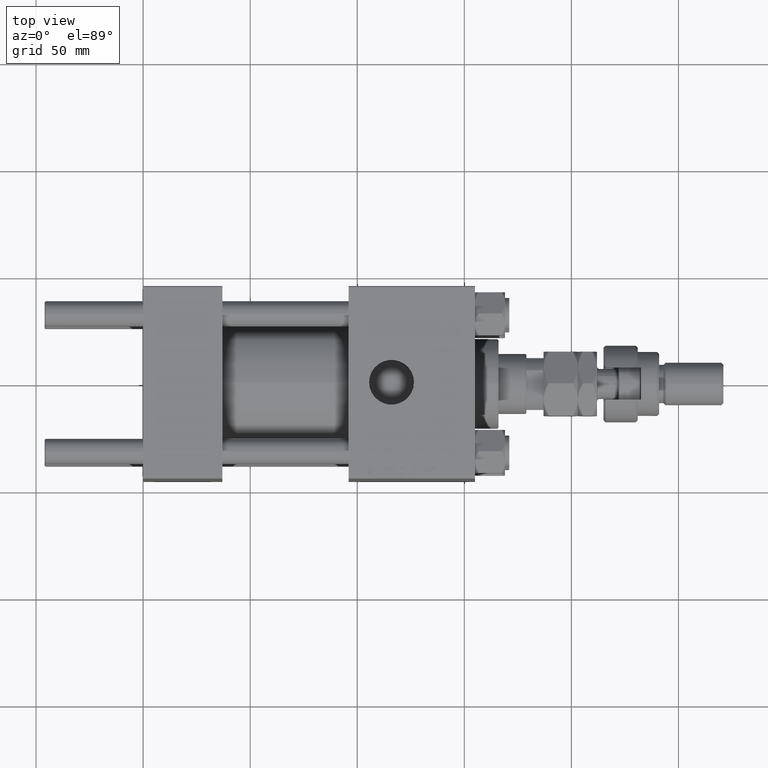
[diagram: clean part render]
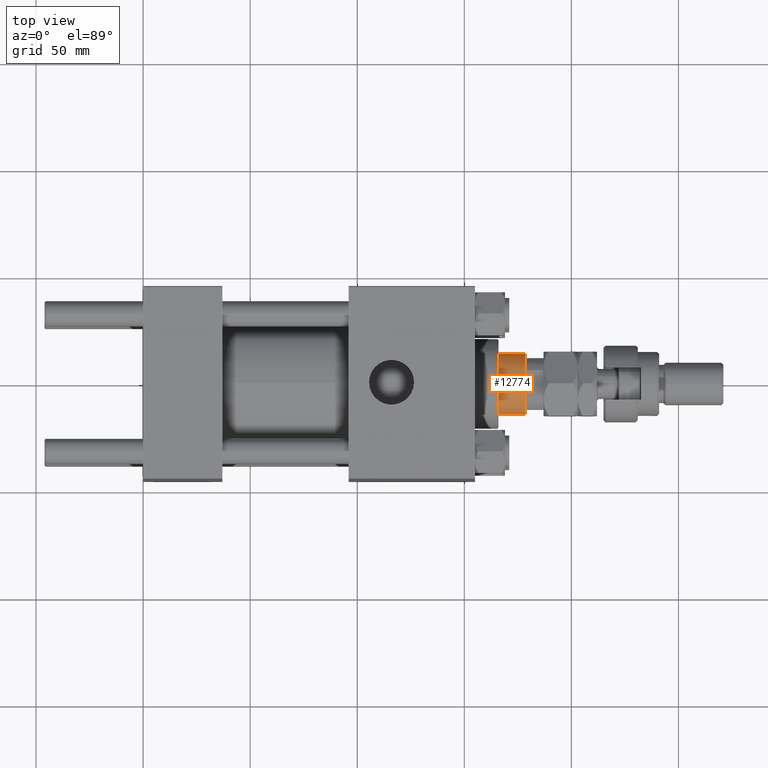
[diagram: same view with one face highlighted and labeled with its STEP entity id]
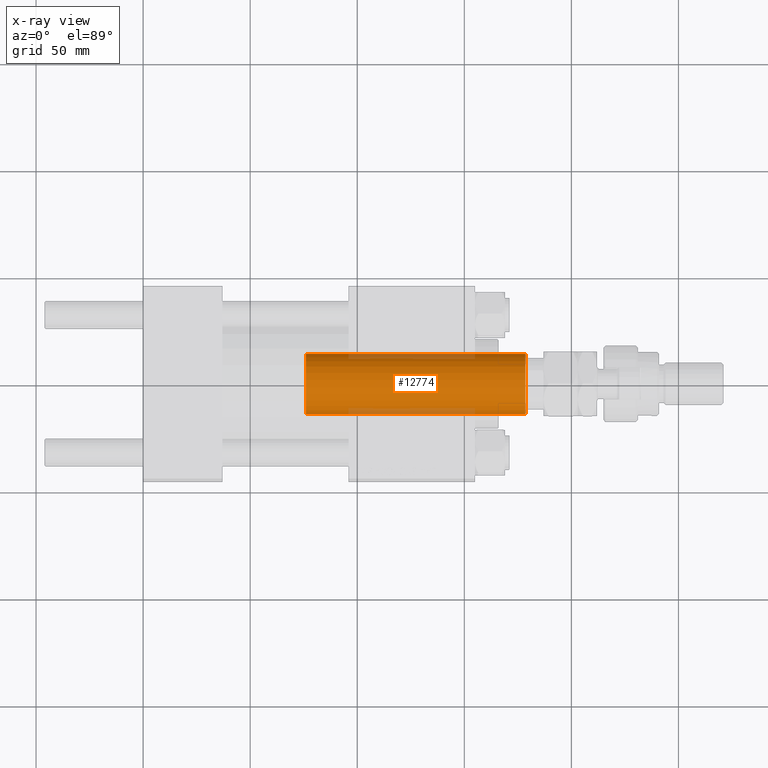
[diagram: x-ray of the same camera — body ghosted, the highlighted face saturated]
A machine part, top view. The second image highlights one B-rep face of the part: STEP entity #12774.
The next image is the same camera in x-ray: the body ghosted, the highlighted face saturated — about 10% of this face is hidden behind the body in this view.
In plain terms, the highlighted cylindrical surface (edge-blend (fillet) strip) has radius 14 mm, axis along (-1, 0, 0).
Its self-contained STEP definition (entity closure, byte-faithful):
#1928 = EDGE_CURVE ( 'NONE', #41374, #25285, #30526, .T. ) ;
#8344 = CARTESIAN_POINT ( 'NONE',  ( -14.00000000000000178, 0.000000000000000000, 39.00000000000000000 ) ) ;
#10160 = DIRECTION ( 'NONE',  ( -0.000000000000000000, -0.000000000000000000, -1.000000000000000000 ) ) ;
#12413 = CIRCLE ( 'NONE', #37073, 14.00000000000000178 ) ;
#12774 = ADVANCED_FACE ( 'NONE', ( #25592 ), #37839, .T. ) ;
#14074 = CARTESIAN_POINT ( 'NONE',  ( 0.000000000000000000, 0.000000000000000000, 39.00000000000000000 ) ) ;
#17472 = CARTESIAN_POINT ( 'NONE',  ( -14.00000000000000178, 0.000000000000000000, 141.5000000000000000 ) ) ;
#18436 = VECTOR ( 'NONE', #50869, 1000.000000000000000 ) ;
#18467 = ORIENTED_EDGE ( 'NONE', *, *, #20885, .T. ) ;
#20792 = ORIENTED_EDGE ( 'NONE', *, *, #44821, .F. ) ;
#20885 = EDGE_CURVE ( 'NONE', #47460, #45832, #12413, .T. ) ;
#21535 = DIRECTION ( 'NONE',  ( 0.000000000000000000, 0.000000000000000000, 1.000000000000000000 ) ) ;
#24056 = VECTOR ( 'NONE', #47495, 1000.000000000000000 ) ;
#25285 = VERTEX_POINT ( 'NONE', #17472 ) ;
#25592 = FACE_OUTER_BOUND ( 'NONE', #37191, .T. ) ;
#26615 = LINE ( 'NONE', #46353, #18436 ) ;
#26692 = CARTESIAN_POINT ( 'NONE',  ( 14.00000000000000178, 1.714505518806294835E-15, 142.0000000000000000 ) ) ;
#27222 = LINE ( 'NONE', #26692, #24056 ) ;
#27427 = AXIS2_PLACEMENT_3D ( 'NONE', #29592, #10160, #50391 ) ;
#28170 = EDGE_CURVE ( 'NONE', #25285, #47460, #26615, .T. ) ;
#29031 = CARTESIAN_POINT ( 'NONE',  ( 14.00000000000000178, 1.714505518806294835E-15, 141.5000000000000000 ) ) ;
#29592 = CARTESIAN_POINT ( 'NONE',  ( 0.000000000000000000, 0.000000000000000000, 142.0000000000000000 ) ) ;
#30526 = CIRCLE ( 'NONE', #46720, 14.00000000000000178 ) ;
#37073 = AXIS2_PLACEMENT_3D ( 'NONE', #14074, #21535, #42568 ) ;
#37191 = EDGE_LOOP ( 'NONE', ( #20792, #46235, #39717, #18467 ) ) ;
#37839 = CYLINDRICAL_SURFACE ( 'NONE', #27427, 14.00000000000000178 ) ;
#39717 = ORIENTED_EDGE ( 'NONE', *, *, #28170, .T. ) ;
#40306 = DIRECTION ( 'NONE',  ( 0.000000000000000000, 0.000000000000000000, -1.000000000000000000 ) ) ;
#41374 = VERTEX_POINT ( 'NONE', #29031 ) ;
#42568 = DIRECTION ( 'NONE',  ( 1.000000000000000000, 0.000000000000000000, 0.000000000000000000 ) ) ;
#42903 = CARTESIAN_POINT ( 'NONE',  ( 14.00000000000000178, 1.714505518806294835E-15, 39.00000000000000000 ) ) ;
#44821 = EDGE_CURVE ( 'NONE', #41374, #45832, #27222, .T. ) ;
#45535 = DIRECTION ( 'NONE',  ( 1.000000000000000000, 0.000000000000000000, 0.000000000000000000 ) ) ;
#45832 = VERTEX_POINT ( 'NONE', #42903 ) ;
#46235 = ORIENTED_EDGE ( 'NONE', *, *, #1928, .T. ) ;
#46353 = CARTESIAN_POINT ( 'NONE',  ( -14.00000000000000178, 0.000000000000000000, 142.0000000000000000 ) ) ;
#46720 = AXIS2_PLACEMENT_3D ( 'NONE', #50337, #40306, #45535 ) ;
#47460 = VERTEX_POINT ( 'NONE', #8344 ) ;
#47495 = DIRECTION ( 'NONE',  ( -0.000000000000000000, -0.000000000000000000, -1.000000000000000000 ) ) ;
#50337 = CARTESIAN_POINT ( 'NONE',  ( 0.000000000000000000, 0.000000000000000000, 141.5000000000000000 ) ) ;
#50391 = DIRECTION ( 'NONE',  ( -1.000000000000000000, 0.000000000000000000, 0.000000000000000000 ) ) ;
#50869 = DIRECTION ( 'NONE',  ( -0.000000000000000000, -0.000000000000000000, -1.000000000000000000 ) ) ;